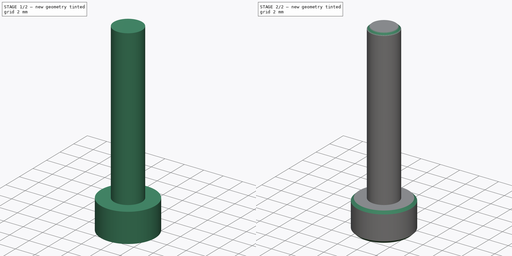
[diagram: build sequence overview — one tinted view per stage of 2, left to right]
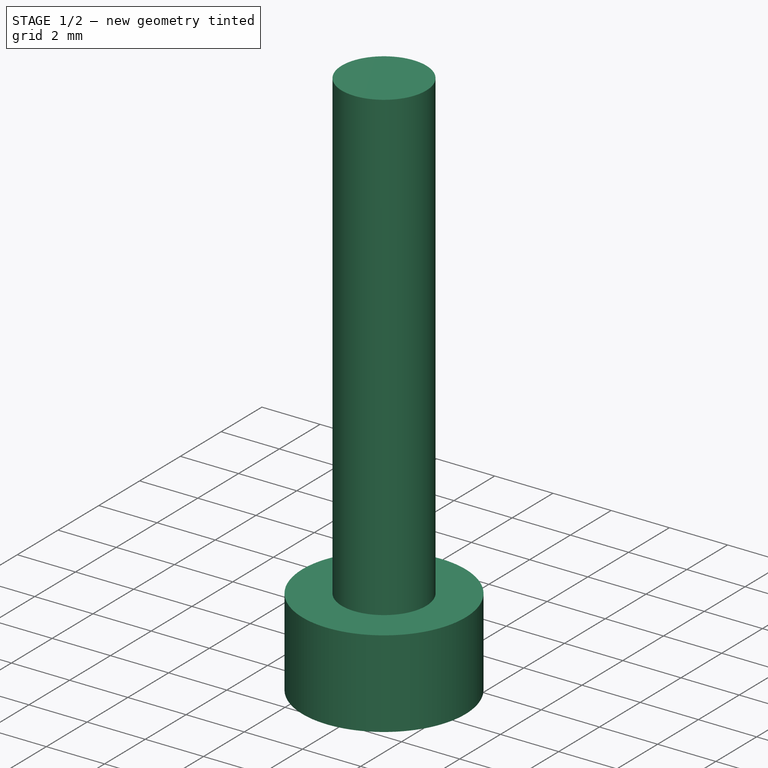
[diagram: stage 1 of 2 — iso view after this stage's code; geometry added in this stage tinted green]
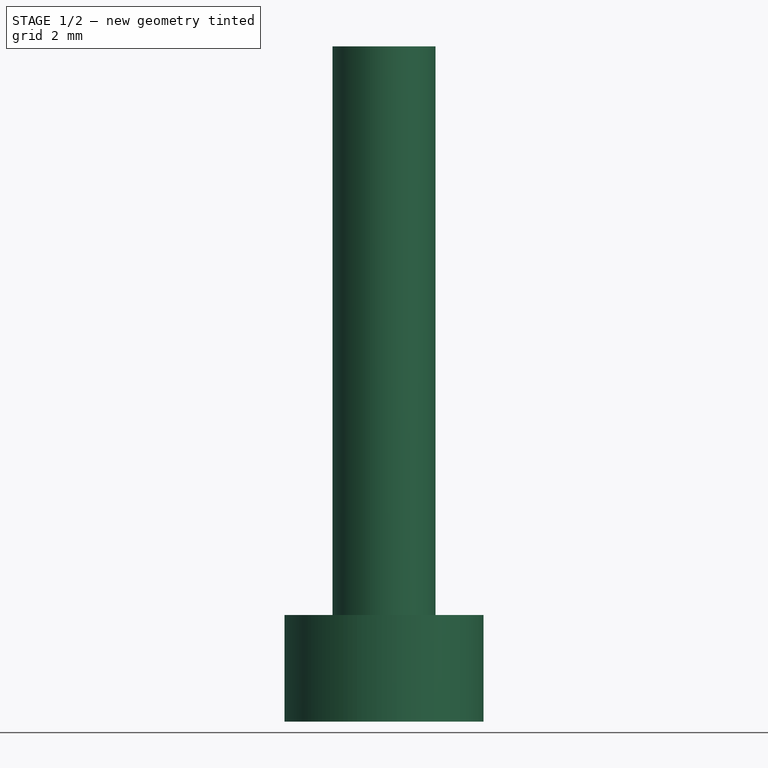
[diagram: stage 1 of 2 — front view after this stage's code; geometry added in this stage tinted green]
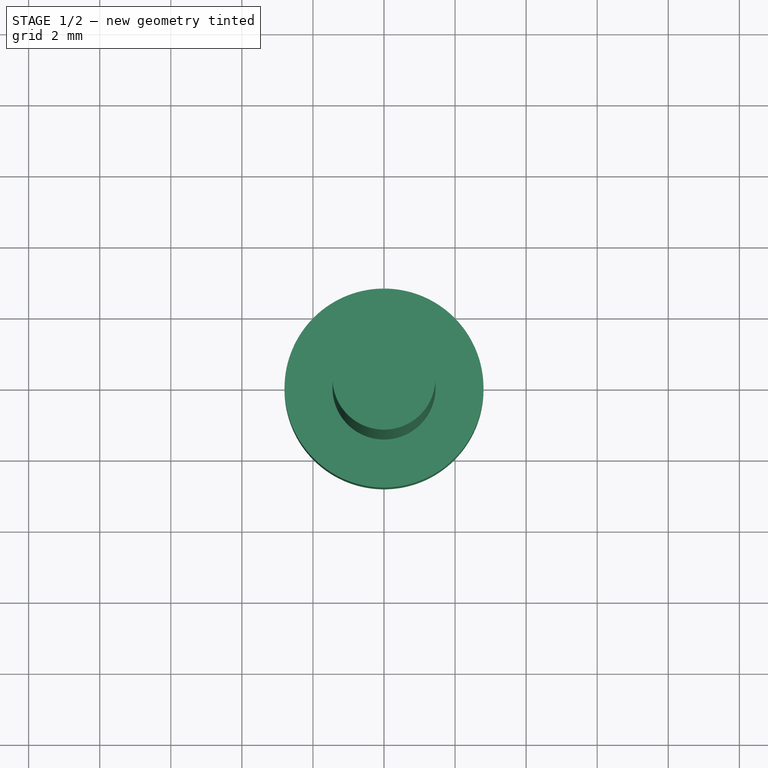
[diagram: stage 1 of 2 — top view after this stage's code; geometry added in this stage tinted green]
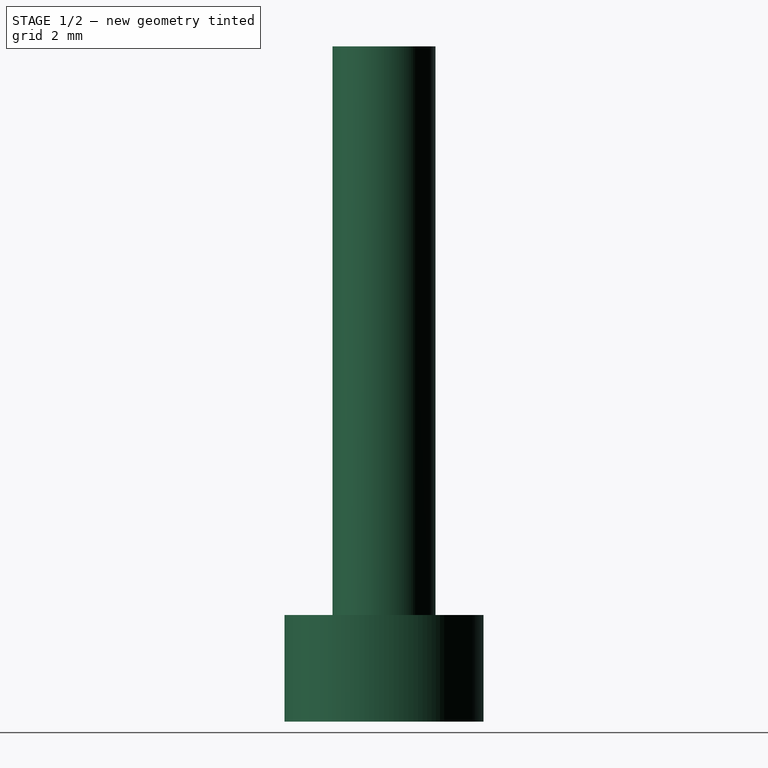
[diagram: stage 1 of 2 — right view after this stage's code; geometry added in this stage tinted green]
FCSTD DOCUMENT  (FreeCAD 0.21R38947 (Git))
Label: m3x16-cap-screw
License: All rights reserved
LicenseURL: http://en.wikipedia.org/wiki/All_rights_reserved
objects: Sketcher::SketchObject×3, PartDesign::Pad×2, PartDesign::Pocket×1, PartDesign::Chamfer×1, PartDesign::Body×1
note: 19 computed .brp shape members not serialized (recipe doc carries the construction recipe); baked Part::Feature solids carry a one-line shape summary decoded from their .brp

FEATURE [Sketcher::SketchObject] Sketch
  ArcFitTolerance = 0
  AttachmentSupport = -> [XY_Plane]
  ExternalBSplineMaxDegree = 0
  ExternalBSplineTolerance = 0
  FullyConstrained = true
  InternalTolerance = 1e-06
  InvalidShape = false
  MakeInternals = false
  MapMode = 5
  Support = -> [XY_Plane]
  TreeRank = 0
  ValidateShape = false
  sketch-geometry (1):
    g0: Circle CenterX=0 CenterY=0 CenterZ=0 NormalX=0 NormalY=0 NormalZ=1 AngleXU=0 Radius=2.8
  constraints (2):
    c: Coincident(g0,g-1)
    c: Diameter(g0) = 5.6
FEATURE [PartDesign::Pad] Pad
  AddSubType = 0
  AutoTaperInnerAngle = true
  CheckUpToFaceLimits = true
  ClaimChildren = false
  Direction = (0,0,1)
  Fit = 0
  FitJoin = 0
  InnerFit = 0
  InnerFitJoin = 0
  InvalidShape = false
  Length = 3
  Length2 = 100
  NewSolid = false
  Profile = -> Sketch
  Suppress = false
  TaperInnerAngle = 0
  TaperInnerAngleRev = 0
  TreeRank = 0
  Type = 0
  ValidateShape = true
  _ProfileBasedVersion = 0
FEATURE [Sketcher::SketchObject] Sketch001
  ArcFitTolerance = 0
  AttachmentSupport = -> [Pad]
  ExternalBSplineMaxDegree = 0
  ExternalBSplineTolerance = 0
  FullyConstrained = true
  InternalTolerance = 1e-06
  InvalidShape = false
  MakeInternals = false
  MapMode = 5
  Placement = pos=(0,0,3) rot=(0,0,1;0rad)
  Support = -> [Pad]
  TreeRank = 0
  ValidateShape = false
  sketch-geometry (1):
    g0: Circle CenterX=0 CenterY=0 CenterZ=0 NormalX=0 NormalY=0 NormalZ=1 AngleXU=0 Radius=1.45
  constraints (2):
    c: Coincident(g0,g-1)
    c: Diameter(g0) = 2.9
FEATURE [PartDesign::Pad] Pad001
  AddSubType = 0
  AutoTaperInnerAngle = true
  BaseFeature = -> Pad
  CheckUpToFaceLimits = true
  ClaimChildren = false
  Direction = (0,0,1)
  Fit = 0
  FitJoin = 0
  InnerFit = 0
  InnerFitJoin = 0
  InvalidShape = false
  Length = 16
  Length2 = 100
  NewSolid = false
  Profile = -> Sketch001
  Suppress = false
  TaperInnerAngle = 0
  TaperInnerAngleRev = 0
  TreeRank = 0
  Type = 0
  ValidateShape = true
  _ProfileBasedVersion = 0
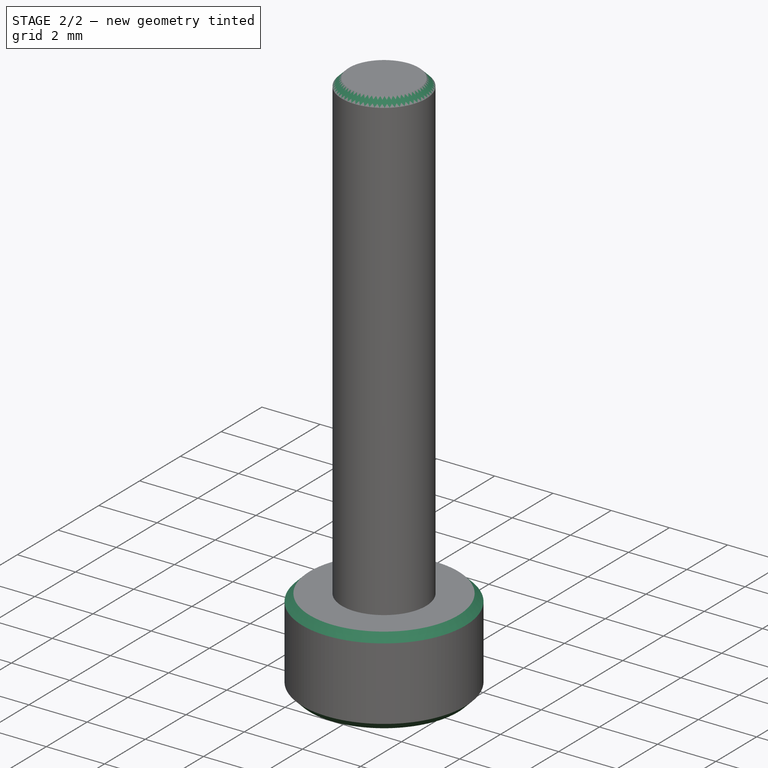
[diagram: stage 2 of 2 — iso view after this stage's code; geometry added in this stage tinted green]
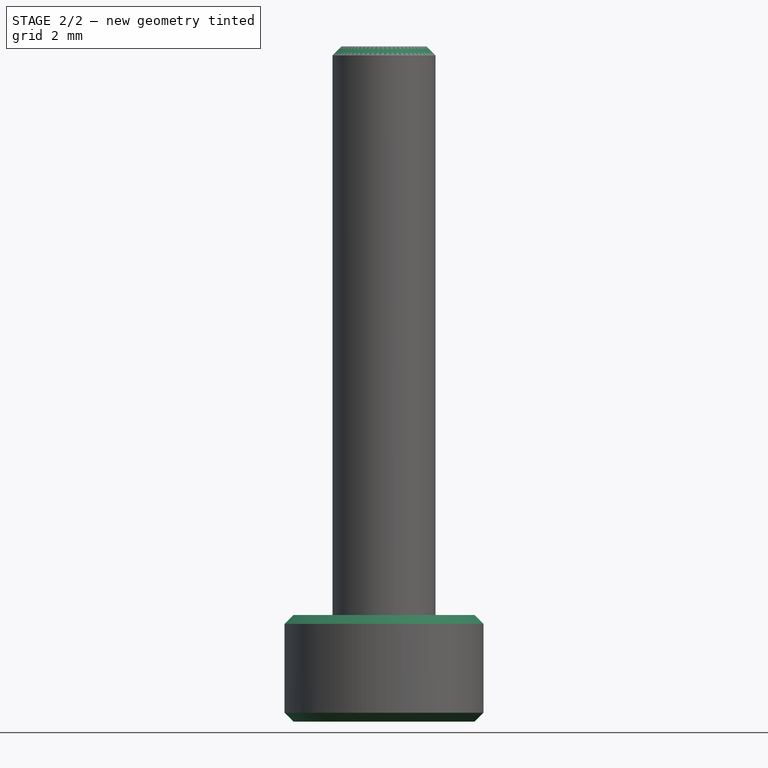
[diagram: stage 2 of 2 — front view after this stage's code; geometry added in this stage tinted green]
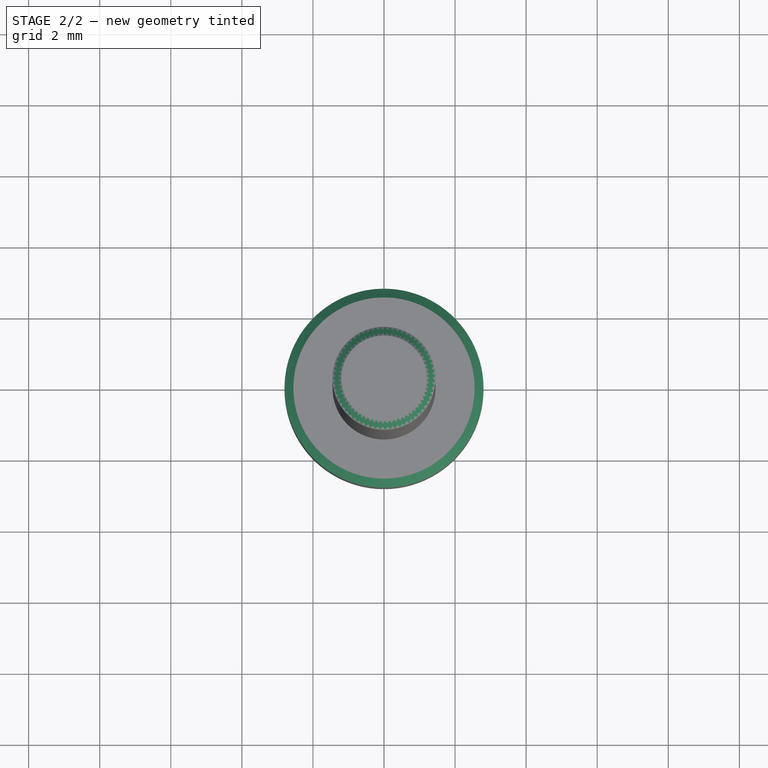
[diagram: stage 2 of 2 — top view after this stage's code; geometry added in this stage tinted green]
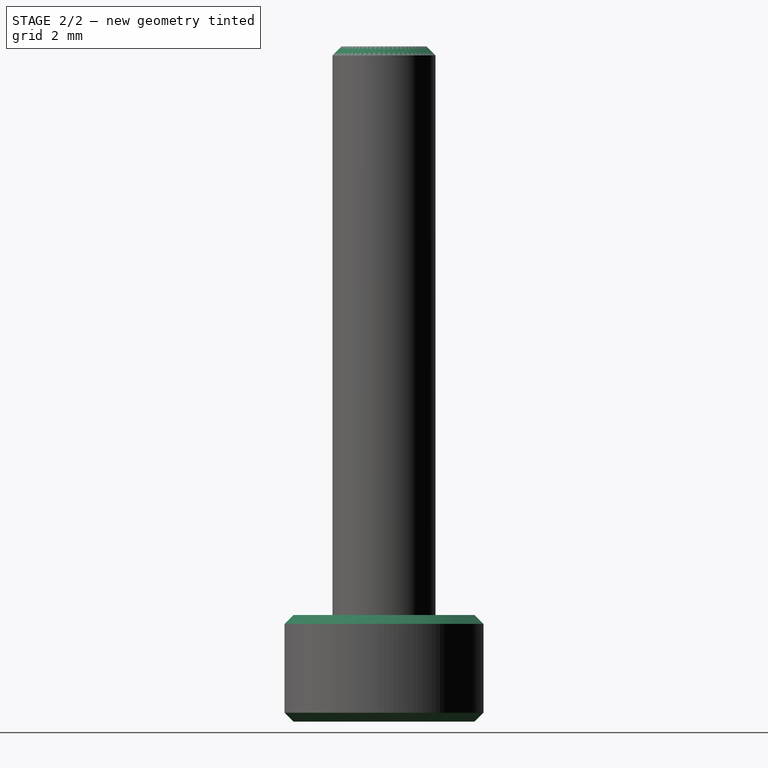
[diagram: stage 2 of 2 — right view after this stage's code; geometry added in this stage tinted green]
FEATURE [Sketcher::SketchObject] Sketch002
  ArcFitTolerance = 0
  AttachmentSupport = -> [Pad001]
  ExternalBSplineMaxDegree = 0
  ExternalBSplineTolerance = 0
  FullyConstrained = false
  InternalTolerance = 1e-06
  InvalidShape = false
  MakeInternals = false
  MapMode = 5
  Placement = pos=(0,0,0) rot=(1,0,0;3.14159rad)
  Support = -> [Pad001]
  TreeRank = 0
  ValidateShape = false
  sketch-geometry (7):
    g0: LineSegment StartX=1.25954 StartY=0.814588 StartZ=0 EndX=-0.0756825 EndY=1.49809 EndZ=0
    g1: LineSegment StartX=-0.0756825 StartY=1.49809 StartZ=0 EndX=-1.33522 EndY=0.683502 EndZ=0
    g2: LineSegment StartX=-1.33522 StartY=0.683502 StartZ=0 EndX=-1.25954 EndY=-0.814588 EndZ=0
    g3: LineSegment StartX=-1.25954 StartY=-0.814588 StartZ=0 EndX=0.0756825 EndY=-1.49809 EndZ=0
    g4: LineSegment StartX=0.0756825 StartY=-1.49809 StartZ=0 EndX=1.33522 EndY=-0.683502 EndZ=0
    g5: LineSegment StartX=1.33522 StartY=-0.683502 StartZ=0 EndX=1.25954 EndY=0.814588 EndZ=0
    g6: Circle [constr] CenterX=0 CenterY=0 CenterZ=0 NormalX=0 NormalY=0 NormalZ=1 AngleXU=0 Radius=1.5
  constraints (15):
    c: Coincident(g0,g1)
    c: Coincident(g1,g2)
    c: Coincident(g2,g3)
    c: Coincident(g3,g4)
    c: Coincident(g4,g5)
    c: Coincident(g5,g0)
    c: Equal(g0, g1-g5) x5
    c: PointOnObject(g0,g6)
    c: PointOnObject(g1,g6)
    c: PointOnObject(g2,g6)
    c: PointOnObject(g3,g6)
    c: PointOnObject(g4,g6)
    c: PointOnObject(g5,g6)
    c: Coincident(g6,g-1)
    c: Diameter(g6) = 3
FEATURE [PartDesign::Pocket] Pocket
  AddSubType = 1
  AutoTaperInnerAngle = true
  BaseFeature = -> Pad001
  CheckUpToFaceLimits = true
  ClaimChildren = false
  Direction = (0,0,1)
  Fit = 0
  FitJoin = 0
  InnerFit = 0
  InnerFitJoin = 0
  InvalidShape = false
  Length = 2
  Length2 = 100
  NewSolid = false
  Profile = -> Sketch002
  Suppress = false
  TaperInnerAngle = 0
  TaperInnerAngleRev = 0
  TreeRank = 0
  Type = 0
  ValidateShape = true
  _ProfileBasedVersion = 0
  _Version = 0
FEATURE [PartDesign::Chamfer] Chamfer
  AddSubType = 0
  Angle = 45
  Base = -> Pocket [Edge3,Edge2,Edge4,Edge5,Edge6,Edge7,Edge8,Edge9,Edge24]
  BaseFeature = -> Pocket
  ChamferType = 0
  FlipDirection = false
  InvalidShape = false
  NewSolid = false
  Size = 0.25
  Size2 = 1
  SupportTransform = true
  Suppress = false
  TreeRank = 0
  UseAllEdges = false
  ValidateShape = true
FEATURE [PartDesign::Body] Body  label="m3x16-cap-screw"
  AutoGroupSolids = false
  ClaimAllChildren = false
  ExportMode = 0
  Group = -> [Sketch,Pad,Sketch001,Pad001,Sketch002,Pocket,Chamfer]
  InvalidShape = false
  Origin = -> Origin
  Tip = -> Chamfer
  TreeRank = 0
  ValidateShape = false
  _ExportChildren = -> [Pad,Pad001,Pocket,Chamfer]
  _GroupVersion = 1
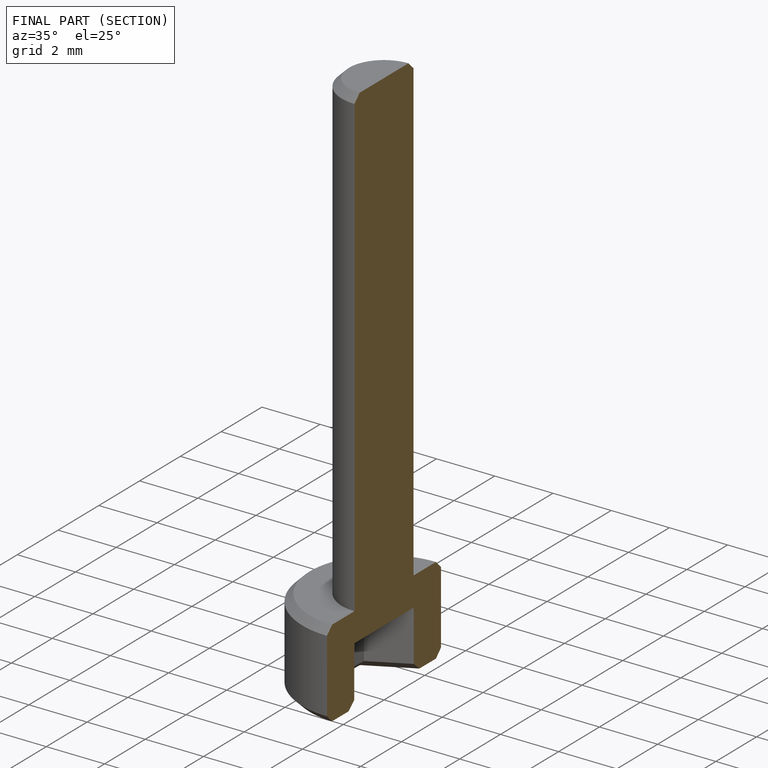
[diagram: finished part — half-section view (interior)]
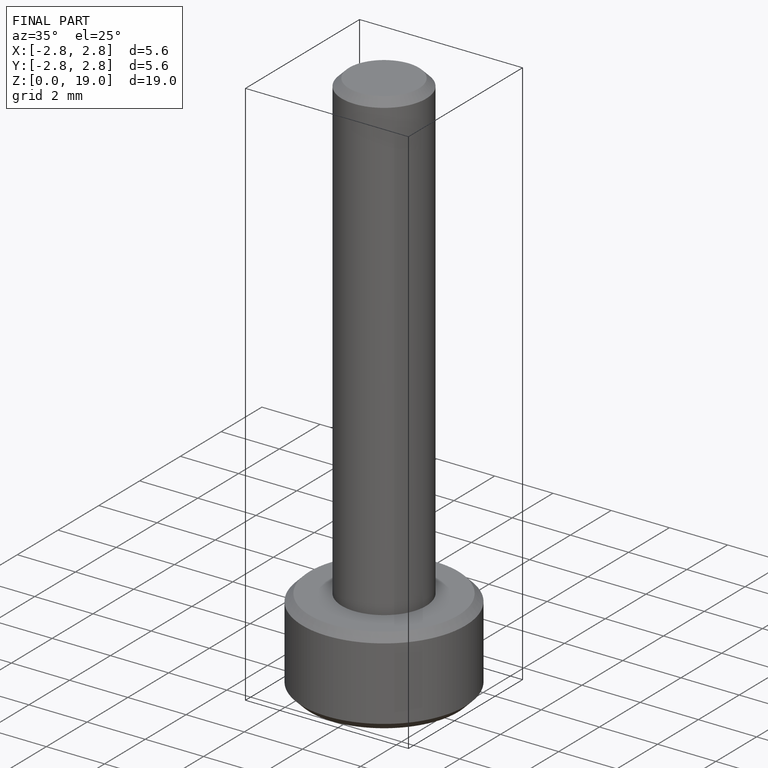
[diagram: finished part — iso view with bounding-box wireframe]
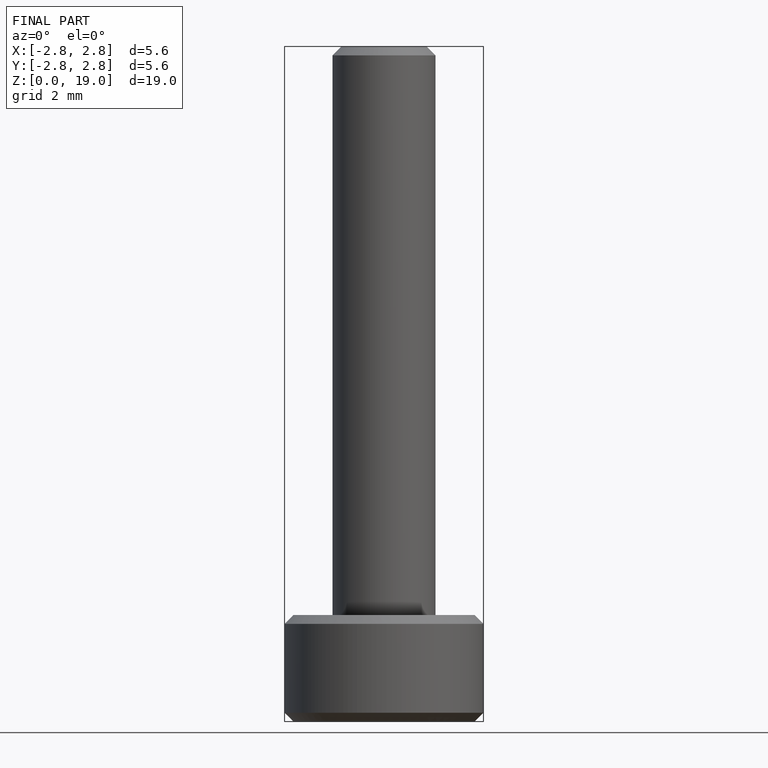
[diagram: finished part — front view with bounding-box wireframe]
